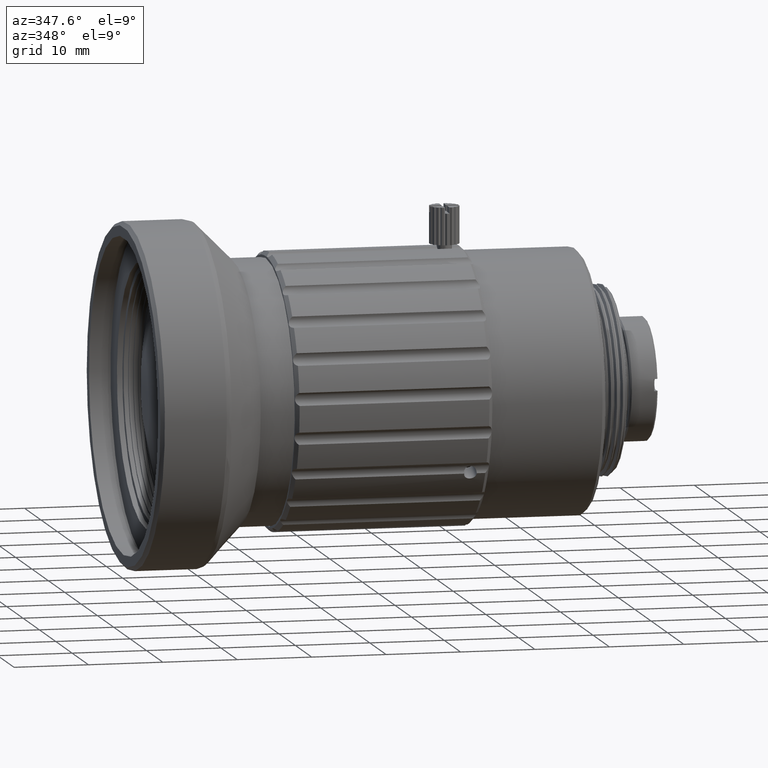
[diagram: clean part render]
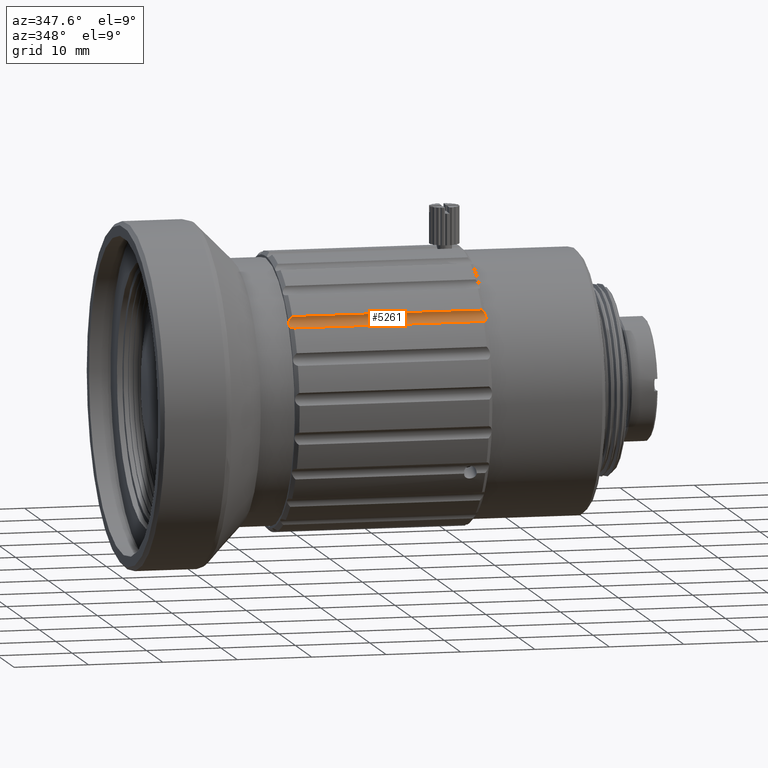
[diagram: same view with one face highlighted and labeled with its STEP entity id]
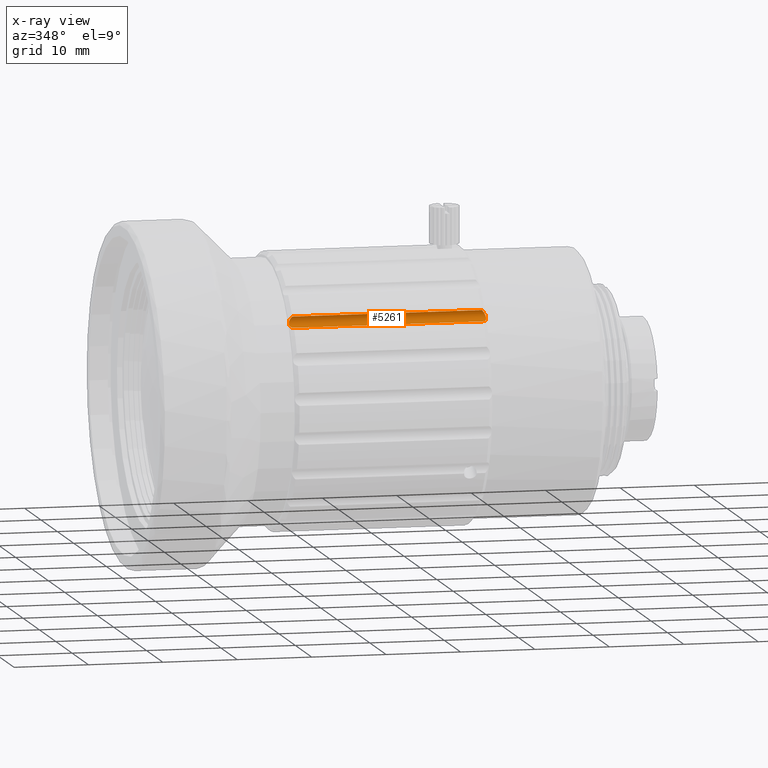
[diagram: x-ray of the same camera — body ghosted, the highlighted face saturated]
A machine part, auxiliary view. The second image highlights one B-rep face of the part: STEP entity #5261.
The next image is the same camera in x-ray: the body ghosted, the highlighted face saturated — about 0% of this face is hidden behind the body in this view.
In plain terms, the highlighted cylindrical surface (edge-blend (fillet) strip) has radius 1 mm, axis along (-1, -0, -0).
Its self-contained STEP definition (entity closure, byte-faithful):
#93 = CARTESIAN_POINT ( 'NONE',  ( -20.70405292198535818, -15.80642464500117761, 80.33600446237284132 ) ) ;
#199 = DIRECTION ( 'NONE',  ( 1.000000000000000000, 5.196204194268909120E-18, 1.232595164407830946E-32 ) ) ;
#250 = CARTESIAN_POINT ( 'NONE',  ( 5.224457988342606107, -15.77925464107980602, 79.70337498480859040 ) ) ;
#540 = CARTESIAN_POINT ( 'NONE',  ( -21.20405292198541858, -15.95702185100060433, 79.36757955700954881 ) ) ;
#1421 = CYLINDRICAL_SURFACE ( 'NONE', #2109, 0.9999999999931090677 ) ;
#1446 = CARTESIAN_POINT ( 'NONE',  ( 4.860268732364136923, -15.78074734330654039, 80.26734048155236678 ) ) ;
#1666 = CARTESIAN_POINT ( 'NONE',  ( -21.13256383231420443, -16.24144152414645603, 79.11565655333309621 ) ) ;
#2109 = AXIS2_PLACEMENT_3D ( 'NONE', #14330, #4902, #12900 ) ;
#2563 = VERTEX_POINT ( 'NONE', #14160 ) ;
#2655 = CARTESIAN_POINT ( 'NONE',  ( 5.036114460517197244, -15.74170524269030302, 80.04232119394866629 ) ) ;
#2720 = CARTESIAN_POINT ( 'NONE',  ( -21.14019457697694193, -15.76825073283905354, 79.70528797303629176 ) ) ;
#2901 = CARTESIAN_POINT ( 'NONE',  ( 5.295947078013699461, -15.95702185100063275, 79.36757955700959144 ) ) ;
#3114 = CARTESIAN_POINT ( 'NONE',  ( -20.76837457633544659, -16.78986163590531433, 78.98414727344872688 ) ) ;
#3142 = ORIENTED_EDGE ( 'NONE', *, *, #10877, .F. ) ;
#3281 = B_SPLINE_CURVE_WITH_KNOTS ( 'NONE', 3,
 ( #7186, #8166, #2720, #9510, #11771, #93 ),
 .UNSPECIFIED., .F., .F.,
 ( 4, 2, 4 ),
 ( 1.589900327696125378E-17, 0.0005788812589936554636, 0.001157762517987294881 ),
 .UNSPECIFIED. ) ;
#3474 = VERTEX_POINT ( 'NONE', #7619 ) ;
#3950 = CARTESIAN_POINT ( 'NONE',  ( -20.70405292198535818, -16.86264374010817235, 78.99291262525281354 ) ) ;
#4214 = CARTESIAN_POINT ( 'NONE',  ( 5.295947078013699461, -15.95702185100063275, 79.36757955700959144 ) ) ;
#4299 = B_SPLINE_CURVE_WITH_KNOTS ( 'NONE', 3,
 ( #2901, #6313, #9916, #14600, #10886, #14522 ),
 .UNSPECIFIED., .F., .F.,
 ( 4, 2, 4 ),
 ( 6.992893892674702526E-18, 0.0005788812589936011450, 0.001157762517987195351 ),
 .UNSPECIFIED. ) ;
#4673 = VERTEX_POINT ( 'NONE', #10750 ) ;
#4709 = CARTESIAN_POINT ( 'NONE',  ( -20.70405292198535818, -16.86264374010817235, 78.99291262525281354 ) ) ;
#4853 = CARTESIAN_POINT ( 'NONE',  ( 5.090421058328779225, -15.73977540183411961, 79.96051680372912074 ) ) ;
#4902 = DIRECTION ( 'NONE',  ( -1.000000000000000000, -5.196204194268909120E-18, -1.232595164407830946E-32 ) ) ;
#5261 = ADVANCED_FACE ( 'NONE', ( #7397 ), #1421, .F. ) ;
#5387 = CARTESIAN_POINT ( 'NONE',  ( -21.18838786309723687, -16.08935513010710494, 79.22328909477374737 ) ) ;
#5766 = VERTEX_POINT ( 'NONE', #14218 ) ;
#5870 = VECTOR ( 'NONE', #6157, 1000.000000000000000 ) ;
#5919 = CARTESIAN_POINT ( 'NONE',  ( 5.184493270756970418, -15.75847390535565751, 79.79129857249202473 ) ) ;
#6115 = EDGE_CURVE ( 'NONE', #3474, #7891, #13543, .T. ) ;
#6157 = DIRECTION ( 'NONE',  ( -1.000000000000000000, -5.196204194268909120E-18, -1.232595164407830946E-32 ) ) ;
#6313 = CARTESIAN_POINT ( 'NONE',  ( 5.295947078013744758, -16.07845205744996164, 79.21316848849407677 ) ) ;
#6394 = EDGE_CURVE ( 'NONE', #7930, #5766, #9207, .T. ) ;
#7186 = CARTESIAN_POINT ( 'NONE',  ( -21.20405292198541858, -15.95702185100060433, 79.36757955700954881 ) ) ;
#7338 = ORIENTED_EDGE ( 'NONE', *, *, #11632, .F. ) ;
#7397 = FACE_OUTER_BOUND ( 'NONE', #7766, .T. ) ;
#7619 = CARTESIAN_POINT ( 'NONE',  ( 4.795947078014048515, -15.80642464500120070, 80.33600446237289816 ) ) ;
#7642 = CARTESIAN_POINT ( 'NONE',  ( -20.94422030448863836, -16.56198076503482852, 78.99925601613273329 ) ) ;
#7720 = CARTESIAN_POINT ( 'NONE',  ( -21.20405292198543989, -16.01783613812112250, 79.29024790016842417 ) ) ;
#7766 = EDGE_LOOP ( 'NONE', ( #13116, #10163, #8465, #7338, #14278, #3142 ) ) ;
#7891 = VERTEX_POINT ( 'NONE', #4214 ) ;
#7930 = VERTEX_POINT ( 'NONE', #4709 ) ;
#8166 = CARTESIAN_POINT ( 'NONE',  ( -21.20405292198541503, -15.83559164455123103, 79.52199062552507769 ) ) ;
#8465 = ORIENTED_EDGE ( 'NONE', *, *, #10880, .F. ) ;
#8542 = CARTESIAN_POINT ( 'NONE',  ( -20.99852690230025232, -16.48202733505388196, 79.01666669042185731 ) ) ;
#8955 = LINE ( 'NONE', #9025, #12850 ) ;
#9025 = CARTESIAN_POINT ( 'NONE',  ( 50.20457836348905545, -15.80642464500120781, 80.33600446237286974 ) ) ;
#9207 = B_SPLINE_CURVE_WITH_KNOTS ( 'NONE', 3,
 ( #3950, #3114, #13294, #7642, #8542, #12244, #1666, #5387, #7720, #540 ),
 .UNSPECIFIED., .F., .F.,
 ( 4, 2, 2, 2, 4 ),
 ( 2.221529986854170653E-17, 0.0002881982755678270556, 0.0005763965511356318851, 0.0008645948267034367146, 0.001152793102271241436 ),
 .UNSPECIFIED. ) ;
#9376 = CARTESIAN_POINT ( 'NONE',  ( 4.921413783893818561, -15.76220934712710076, 80.19513184781399673 ) ) ;
#9510 = CARTESIAN_POINT ( 'NONE',  ( -20.95268211296524896, -15.73034948786787623, 80.04337460273266913 ) ) ;
#9916 = CARTESIAN_POINT ( 'NONE',  ( 5.232088733005349823, -16.24070631854288038, 79.10451182393977376 ) ) ;
#10163 = ORIENTED_EDGE ( 'NONE', *, *, #6394, .F. ) ;
#10500 = CARTESIAN_POINT ( 'NONE',  ( 5.295947078013758968, -15.89620756388005596, 79.44491121385067345 ) ) ;
#10576 = CARTESIAN_POINT ( 'NONE',  ( 4.795947078014048515, -15.80642464500120070, 80.33600446237289816 ) ) ;
#10750 = CARTESIAN_POINT ( 'NONE',  ( -20.70405292198535818, -15.80642464500117761, 80.33600446237284132 ) ) ;
#10877 = EDGE_CURVE ( 'NONE', #4673, #3474, #8955, .T. ) ;
#10880 = EDGE_CURVE ( 'NONE', #2563, #7930, #12869, .T. ) ;
#10886 = CARTESIAN_POINT ( 'NONE',  ( 4.924632503924136095, -16.71703187467020868, 78.97537618217531019 ) ) ;
#11632 = EDGE_CURVE ( 'NONE', #7891, #2563, #4299, .T. ) ;
#11771 = CARTESIAN_POINT ( 'NONE',  ( -20.83273834789549284, -15.75505322835796918, 80.19863154020758600 ) ) ;
#12244 = CARTESIAN_POINT ( 'NONE',  ( -21.09259911472852167, -16.32198743965232524, 79.07473282251963553 ) ) ;
#12850 = VECTOR ( 'NONE', #199, 1000.000000000000000 ) ;
#12869 = LINE ( 'NONE', #13086, #5870 ) ;
#12900 = DIRECTION ( 'NONE',  ( 0.000000000000000000, -0.8660254037844361541, 0.5000000000000042188 ) ) ;
#12994 = CARTESIAN_POINT ( 'NONE',  ( 5.280282019125582593, -15.84799746361571771, 79.53020033430031788 ) ) ;
#13086 = CARTESIAN_POINT ( 'NONE',  ( 50.20457836348905545, -16.86264374010821498, 78.99291262525282775 ) ) ;
#13116 = ORIENTED_EDGE ( 'NONE', *, *, #14767, .F. ) ;
#13294 = CARTESIAN_POINT ( 'NONE',  ( -20.82951962786517797, -16.71531795205980586, 78.98315566493278084 ) ) ;
#13543 = B_SPLINE_CURVE_WITH_KNOTS ( 'NONE', 3,
 ( #10576, #1446, #9376, #2655, #4853, #5919, #250, #12994, #10500, #14128 ),
 .UNSPECIFIED., .F., .F.,
 ( 4, 2, 2, 2, 4 ),
 ( 1.672906736921607970E-17, 0.0002881982755677939332, 0.0005763965511355710614, 0.0008645948267033482437, 0.001152793102271125426 ),
 .UNSPECIFIED. ) ;
#14128 = CARTESIAN_POINT ( 'NONE',  ( 5.295947078013699461, -15.95702185100063275, 79.36757955700959144 ) ) ;
#14160 = CARTESIAN_POINT ( 'NONE',  ( 4.795947078014044074, -16.86264374010823275, 78.99291262525282775 ) ) ;
#14218 = CARTESIAN_POINT ( 'NONE',  ( -21.20405292198541858, -15.95702185100060433, 79.36757955700954881 ) ) ;
#14278 = ORIENTED_EDGE ( 'NONE', *, *, #6115, .F. ) ;
#14330 = CARTESIAN_POINT ( 'NONE',  ( 5.295947078013565346, -16.74307494573796973, 79.98573854322589227 ) ) ;
#14522 = CARTESIAN_POINT ( 'NONE',  ( 4.795947078014044074, -16.86264374010823275, 78.99291262525282775 ) ) ;
#14600 = CARTESIAN_POINT ( 'NONE',  ( 5.044576268993822055, -16.56032725920850268, 78.98797201169567472 ) ) ;
#14767 = EDGE_CURVE ( 'NONE', #5766, #4673, #3281, .T. ) ;